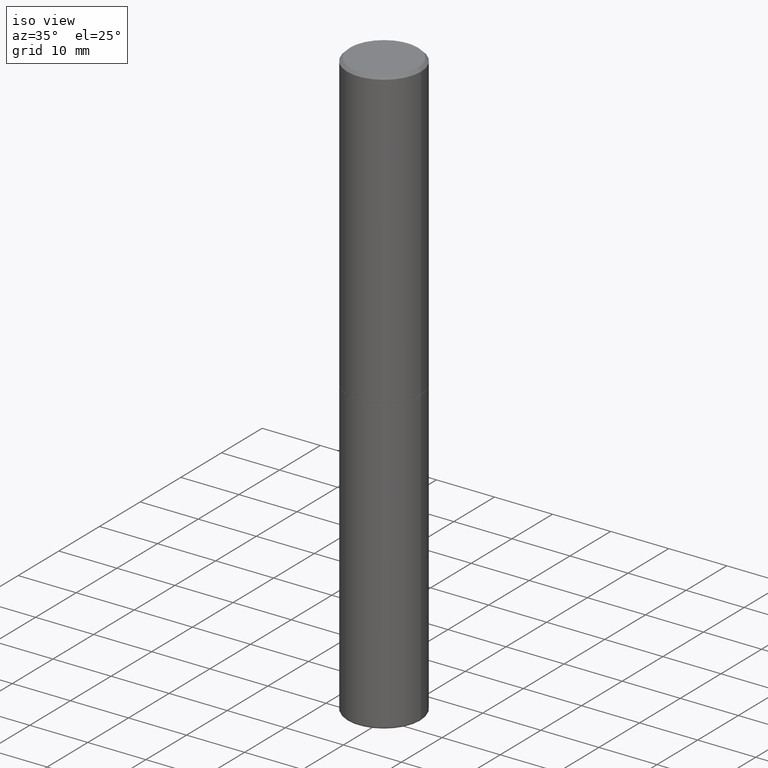
[diagram: clean part render]
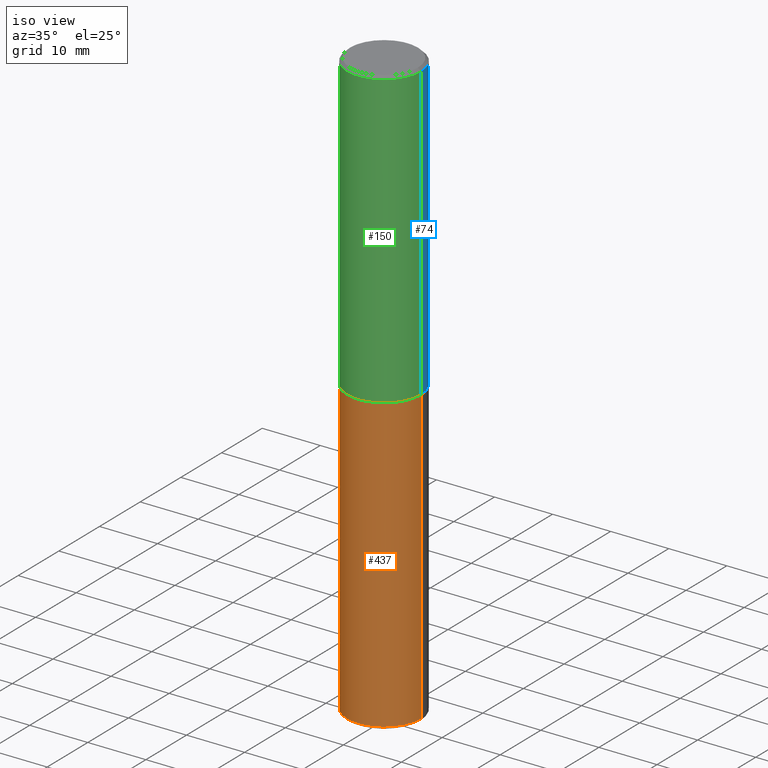
[diagram: same view with three faces highlighted in distinct colors, each labeled with its STEP entity id]
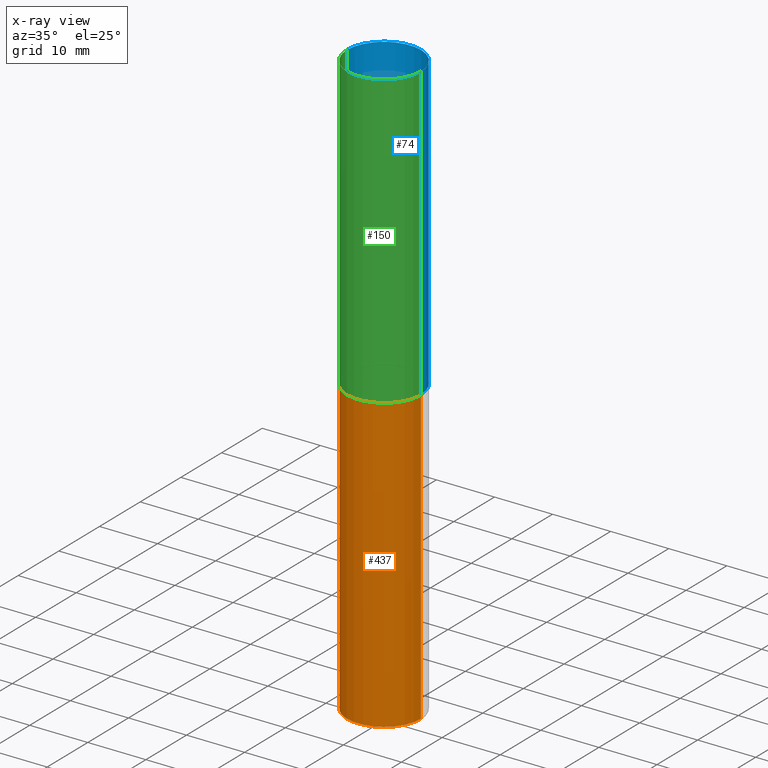
[diagram: x-ray of the same camera — body ghosted, the three highlighted faces saturated]
A machine part, iso view with three faces highlighted in distinct colors.
The next image is the same camera in x-ray (body ghosted, the three faces saturated) — at least one of them is partly hidden behind the body in this view.
Their STEP definitions:

[orange] entity #437 — the highlighted cylindrical surface (partial cylindrical patch) has radius 6.35 mm, axis along (-0, 0, 1).
#19 = CARTESIAN_POINT ( 'NONE',  ( 0.2500000000000000555, -1.565929579888516622E-14, -3.985000571154037274 ) ) ;
#25 = CARTESIAN_POINT ( 'NONE',  ( 4.890937612370273194E-29, -6.982962677686291165E-15, -2.000000000000000000 ) ) ;
#30 = CYLINDRICAL_SURFACE ( 'NONE', #462, 0.2500000000000000000 ) ;
#75 = ORIENTED_EDGE ( 'NONE', *, *, #409, .F. ) ;
#77 = VERTEX_POINT ( 'NONE', #414 ) ;
#79 = CIRCLE ( 'NONE', #308, 0.2499999999999999722 ) ;
#112 = CARTESIAN_POINT ( 'NONE',  ( -0.2500000000000000000, 1.776356839400250465E-15, -1.229733772563726445E-29 ) ) ;
#123 = VERTEX_POINT ( 'NONE', #184 ) ;
#131 = CARTESIAN_POINT ( 'NONE',  ( 0.2500000000000000000, -1.745740669421566678E-15, 1.219044193948983948E-29 ) ) ;
#147 = VECTOR ( 'NONE', #300, 39.37007874015748143 ) ;
#151 = DIRECTION ( 'NONE',  ( -2.445468806185136877E-29, 3.491481338843145188E-15, 1.000000000000000000 ) ) ;
#152 = DIRECTION ( 'NONE',  ( 1.000000000000000000, -6.982962677686266711E-15, 4.876176775795935793E-29 ) ) ;
#157 = EDGE_CURVE ( 'NONE', #123, #194, #261, .T. ) ;
#158 = EDGE_CURVE ( 'NONE', #423, #77, #79, .T. ) ;
#169 = AXIS2_PLACEMENT_3D ( 'NONE', #407, #217, #370 ) ;
#179 = DIRECTION ( 'NONE',  ( -2.445468806185136597E-29, 3.491481338843145583E-15, 1.000000000000000000 ) ) ;
#184 = CARTESIAN_POINT ( 'NONE',  ( -0.2500000000000000555, -8.671902064174693707E-15, -3.985000571154037274 ) ) ;
#194 = VERTEX_POINT ( 'NONE', #19 ) ;
#205 = ORIENTED_EDGE ( 'NONE', *, *, #158, .F. ) ;
#215 = EDGE_CURVE ( 'NONE', #194, #77, #240, .T. ) ;
#217 = DIRECTION ( 'NONE',  ( -2.445468806185136597E-29, 3.491481338843145583E-15, 1.000000000000000000 ) ) ;
#226 = CARTESIAN_POINT ( 'NONE',  ( -0.2499999999999999722, -8.671902064174693707E-15, -2.000000000000000000 ) ) ;
#240 = LINE ( 'NONE', #131, #147 ) ;
#241 = VECTOR ( 'NONE', #151, 39.37007874015748143 ) ;
#261 = CIRCLE ( 'NONE', #169, 0.2500000000000000555 ) ;
#300 = DIRECTION ( 'NONE',  ( -2.445468806185136877E-29, 3.491481338843145188E-15, 1.000000000000000000 ) ) ;
#308 = AXIS2_PLACEMENT_3D ( 'NONE', #25, #179, #334 ) ;
#334 = DIRECTION ( 'NONE',  ( 1.000000000000000000, -6.982962677686267499E-15, 0.000000000000000000 ) ) ;
#340 = CARTESIAN_POINT ( 'NONE',  ( 0.000000000000000000, 0.000000000000000000, 0.000000000000000000 ) ) ;
#342 = LINE ( 'NONE', #112, #241 ) ;
#370 = DIRECTION ( 'NONE',  ( 1.000000000000000000, -6.982962677686269077E-15, 0.000000000000000000 ) ) ;
#378 = FACE_OUTER_BOUND ( 'NONE', #466, .T. ) ;
#389 = ORIENTED_EDGE ( 'NONE', *, *, #157, .T. ) ;
#407 = CARTESIAN_POINT ( 'NONE',  ( 9.745194589387151440E-29, -1.391355512946359954E-14, -3.985000571154037274 ) ) ;
#409 = EDGE_CURVE ( 'NONE', #123, #423, #342, .T. ) ;
#414 = CARTESIAN_POINT ( 'NONE',  ( 0.2499999999999999722, -8.728703347107857054E-15, -2.000000000000000000 ) ) ;
#423 = VERTEX_POINT ( 'NONE', #226 ) ;
#437 = ADVANCED_FACE ( 'NONE', ( #378 ), #30, .T. ) ;
#459 = ORIENTED_EDGE ( 'NONE', *, *, #215, .T. ) ;
#462 = AXIS2_PLACEMENT_3D ( 'NONE', #340, #492, #152 ) ;
#466 = EDGE_LOOP ( 'NONE', ( #75, #389, #459, #205 ) ) ;
#492 = DIRECTION ( 'NONE',  ( -2.445468806185136597E-29, 3.491481338843145583E-15, 1.000000000000000000 ) ) ;

[blue] entity #74 — the highlighted cylindrical surface (partial cylindrical patch) has radius 6.35 mm, axis along (-0, 0, 1).
#12 = VERTEX_POINT ( 'NONE', #85 ) ;
#22 = DIRECTION ( 'NONE',  ( -2.445468806185136877E-29, 3.491481338843145188E-15, 1.000000000000000000 ) ) ;
#33 = DIRECTION ( 'NONE',  ( 1.000000000000000000, -6.982962677686267499E-15, 0.000000000000000000 ) ) ;
#38 = VECTOR ( 'NONE', #22, 39.37007874015748143 ) ;
#44 = CARTESIAN_POINT ( 'NONE',  ( -0.2499999999999993061, 1.675911042644698449E-15, -0.02000000000000010797 ) ) ;
#74 = ADVANCED_FACE ( 'NONE', ( #304 ), #486, .T. ) ;
#85 = CARTESIAN_POINT ( 'NONE',  ( 0.2499999999999993061, -1.784954126219741456E-15, -0.02000000000000010797 ) ) ;
#113 = LINE ( 'NONE', #487, #401 ) ;
#129 = ORIENTED_EDGE ( 'NONE', *, *, #254, .T. ) ;
#149 = DIRECTION ( 'NONE',  ( 1.000000000000000000, -6.982962677686266711E-15, 4.876176775795935793E-29 ) ) ;
#171 = ORIENTED_EDGE ( 'NONE', *, *, #351, .T. ) ;
#186 = AXIS2_PLACEMENT_3D ( 'NONE', #453, #338, #149 ) ;
#201 = ORIENTED_EDGE ( 'NONE', *, *, #347, .F. ) ;
#207 = DIRECTION ( 'NONE',  ( 1.000000000000000000, -6.982962677686267499E-15, 0.000000000000000000 ) ) ;
#210 = VERTEX_POINT ( 'NONE', #44 ) ;
#211 = CARTESIAN_POINT ( 'NONE',  ( 4.888492143564087591E-29, -6.979471196347447369E-15, -1.998999999999999888 ) ) ;
#228 = CIRCLE ( 'NONE', #262, 0.2499999999999993061 ) ;
#254 = EDGE_CURVE ( 'NONE', #470, #348, #426, .T. ) ;
#258 = CARTESIAN_POINT ( 'NONE',  ( 0.2499999999999999722, -8.725211865769014047E-15, -1.998999999999999888 ) ) ;
#262 = AXIS2_PLACEMENT_3D ( 'NONE', #482, #311, #33 ) ;
#282 = EDGE_LOOP ( 'NONE', ( #129, #171, #201, #471 ) ) ;
#304 = FACE_OUTER_BOUND ( 'NONE', #282, .T. ) ;
#310 = CARTESIAN_POINT ( 'NONE',  ( -0.2499999999999996669, 1.776356839400248098E-15, -1.229733772563724764E-29 ) ) ;
#311 = DIRECTION ( 'NONE',  ( -2.445468806185136597E-29, 3.491481338843145583E-15, 1.000000000000000000 ) ) ;
#338 = DIRECTION ( 'NONE',  ( -2.445468806185136597E-29, 3.491481338843145583E-15, 1.000000000000000000 ) ) ;
#347 = EDGE_CURVE ( 'NONE', #12, #210, #228, .T. ) ;
#348 = VERTEX_POINT ( 'NONE', #368 ) ;
#351 = EDGE_CURVE ( 'NONE', #348, #210, #375, .T. ) ;
#368 = CARTESIAN_POINT ( 'NONE',  ( -0.2500000000000000000, -1.748293572161900530E-15, -1.998999999999999888 ) ) ;
#375 = LINE ( 'NONE', #310, #38 ) ;
#392 = EDGE_CURVE ( 'NONE', #470, #12, #113, .T. ) ;
#401 = VECTOR ( 'NONE', #417, 39.37007874015748143 ) ;
#411 = AXIS2_PLACEMENT_3D ( 'NONE', #211, #467, #207 ) ;
#417 = DIRECTION ( 'NONE',  ( -2.445468806185136877E-29, 3.491481338843145188E-15, 1.000000000000000000 ) ) ;
#426 = CIRCLE ( 'NONE', #411, 0.2499999999999999722 ) ;
#453 = CARTESIAN_POINT ( 'NONE',  ( 0.000000000000000000, 0.000000000000000000, 0.000000000000000000 ) ) ;
#467 = DIRECTION ( 'NONE',  ( -2.445468806185136597E-29, 3.491481338843145583E-15, 1.000000000000000000 ) ) ;
#470 = VERTEX_POINT ( 'NONE', #258 ) ;
#471 = ORIENTED_EDGE ( 'NONE', *, *, #392, .F. ) ;
#482 = CARTESIAN_POINT ( 'NONE',  ( 4.890937612370299433E-31, -6.982962677686328587E-17, -0.02000000000000010797 ) ) ;
#486 = CYLINDRICAL_SURFACE ( 'NONE', #186, 0.2499999999999996669 ) ;
#487 = CARTESIAN_POINT ( 'NONE',  ( 0.2499999999999996669, -1.745740669421564311E-15, 1.219044193948982267E-29 ) ) ;

[green] entity #150 — the highlighted cylindrical surface (partial cylindrical patch) has radius 6.35 mm, axis along (-0, 0, 1).
#2 = AXIS2_PLACEMENT_3D ( 'NONE', #331, #301, #256 ) ;
#10 = EDGE_CURVE ( 'NONE', #348, #470, #146, .T. ) ;
#12 = VERTEX_POINT ( 'NONE', #85 ) ;
#22 = DIRECTION ( 'NONE',  ( -2.445468806185136877E-29, 3.491481338843145188E-15, 1.000000000000000000 ) ) ;
#38 = VECTOR ( 'NONE', #22, 39.37007874015748143 ) ;
#44 = CARTESIAN_POINT ( 'NONE',  ( -0.2499999999999993061, 1.675911042644698449E-15, -0.02000000000000010797 ) ) ;
#57 = EDGE_LOOP ( 'NONE', ( #119, #436, #291, #162 ) ) ;
#85 = CARTESIAN_POINT ( 'NONE',  ( 0.2499999999999993061, -1.784954126219741456E-15, -0.02000000000000010797 ) ) ;
#113 = LINE ( 'NONE', #487, #401 ) ;
#119 = ORIENTED_EDGE ( 'NONE', *, *, #351, .F. ) ;
#137 = CIRCLE ( 'NONE', #489, 0.2499999999999993061 ) ;
#146 = CIRCLE ( 'NONE', #425, 0.2499999999999999722 ) ;
#150 = ADVANCED_FACE ( 'NONE', ( #373 ), #367, .T. ) ;
#162 = ORIENTED_EDGE ( 'NONE', *, *, #233, .F. ) ;
#165 = DIRECTION ( 'NONE',  ( -2.445468806185136597E-29, 3.491481338843145583E-15, 1.000000000000000000 ) ) ;
#204 = CARTESIAN_POINT ( 'NONE',  ( 4.890937612370299433E-31, -6.982962677686328587E-17, -0.02000000000000010797 ) ) ;
#210 = VERTEX_POINT ( 'NONE', #44 ) ;
#212 = CARTESIAN_POINT ( 'NONE',  ( 4.888492143564087591E-29, -6.979471196347447369E-15, -1.998999999999999888 ) ) ;
#233 = EDGE_CURVE ( 'NONE', #210, #12, #137, .T. ) ;
#256 = DIRECTION ( 'NONE',  ( 1.000000000000000000, -6.982962677686266711E-15, 4.876176775795935793E-29 ) ) ;
#258 = CARTESIAN_POINT ( 'NONE',  ( 0.2499999999999999722, -8.725211865769014047E-15, -1.998999999999999888 ) ) ;
#291 = ORIENTED_EDGE ( 'NONE', *, *, #392, .T. ) ;
#301 = DIRECTION ( 'NONE',  ( -2.445468806185136597E-29, 3.491481338843145583E-15, 1.000000000000000000 ) ) ;
#310 = CARTESIAN_POINT ( 'NONE',  ( -0.2499999999999996669, 1.776356839400248098E-15, -1.229733772563724764E-29 ) ) ;
#331 = CARTESIAN_POINT ( 'NONE',  ( 0.000000000000000000, 0.000000000000000000, 0.000000000000000000 ) ) ;
#348 = VERTEX_POINT ( 'NONE', #368 ) ;
#351 = EDGE_CURVE ( 'NONE', #348, #210, #375, .T. ) ;
#367 = CYLINDRICAL_SURFACE ( 'NONE', #2, 0.2499999999999996669 ) ;
#368 = CARTESIAN_POINT ( 'NONE',  ( -0.2500000000000000000, -1.748293572161900530E-15, -1.998999999999999888 ) ) ;
#373 = FACE_OUTER_BOUND ( 'NONE', #57, .T. ) ;
#375 = LINE ( 'NONE', #310, #38 ) ;
#392 = EDGE_CURVE ( 'NONE', #470, #12, #113, .T. ) ;
#394 = DIRECTION ( 'NONE',  ( -2.445468806185136597E-29, 3.491481338843145583E-15, 1.000000000000000000 ) ) ;
#401 = VECTOR ( 'NONE', #417, 39.37007874015748143 ) ;
#404 = DIRECTION ( 'NONE',  ( 1.000000000000000000, -6.982962677686267499E-15, 0.000000000000000000 ) ) ;
#417 = DIRECTION ( 'NONE',  ( -2.445468806185136877E-29, 3.491481338843145188E-15, 1.000000000000000000 ) ) ;
#425 = AXIS2_PLACEMENT_3D ( 'NONE', #212, #165, #430 ) ;
#430 = DIRECTION ( 'NONE',  ( 1.000000000000000000, -6.982962677686267499E-15, 0.000000000000000000 ) ) ;
#436 = ORIENTED_EDGE ( 'NONE', *, *, #10, .T. ) ;
#470 = VERTEX_POINT ( 'NONE', #258 ) ;
#487 = CARTESIAN_POINT ( 'NONE',  ( 0.2499999999999996669, -1.745740669421564311E-15, 1.219044193948982267E-29 ) ) ;
#489 = AXIS2_PLACEMENT_3D ( 'NONE', #204, #394, #404 ) ;